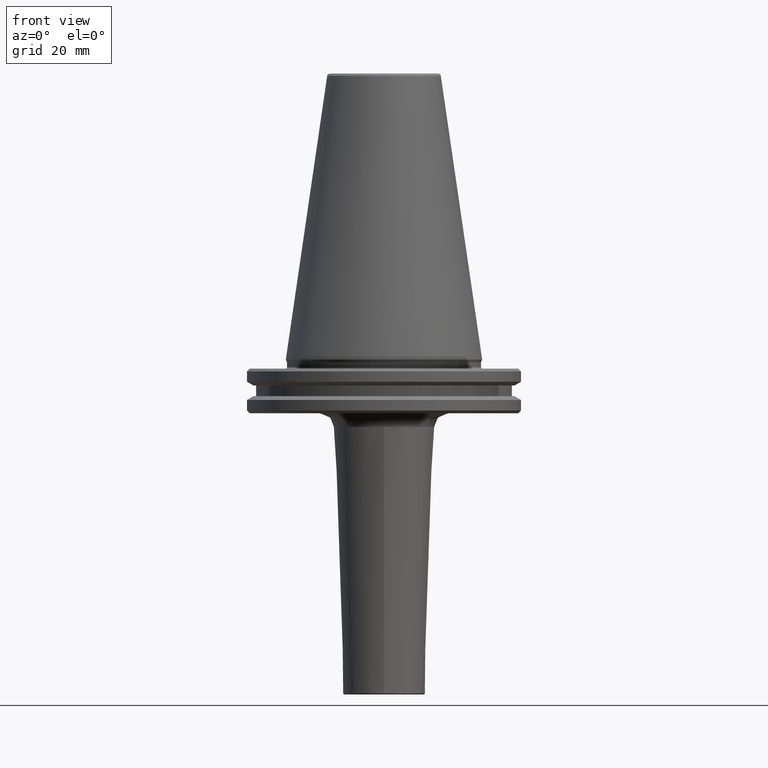
[diagram: clean part render]
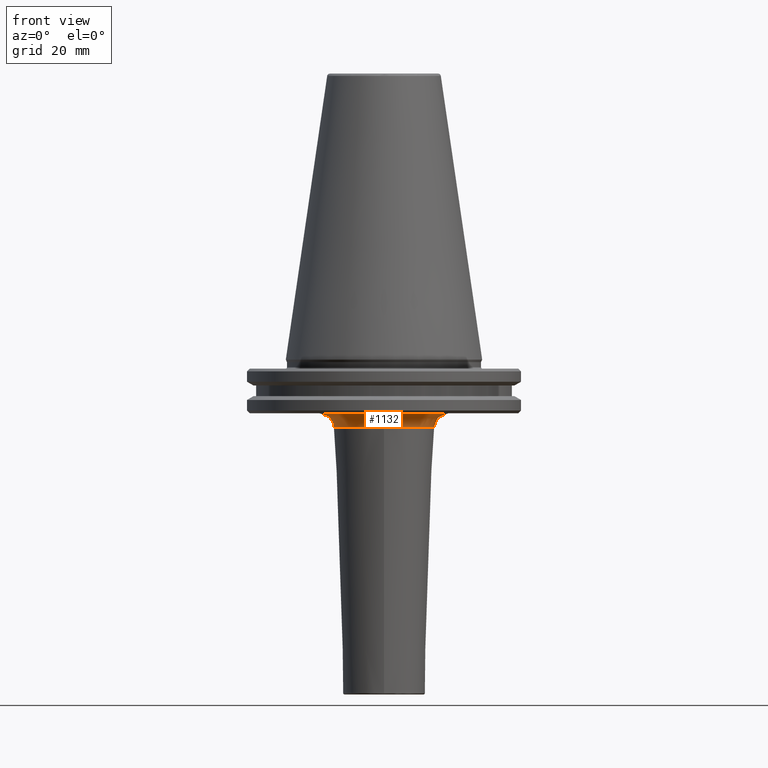
[diagram: same view with one face highlighted and labeled with its STEP entity id]
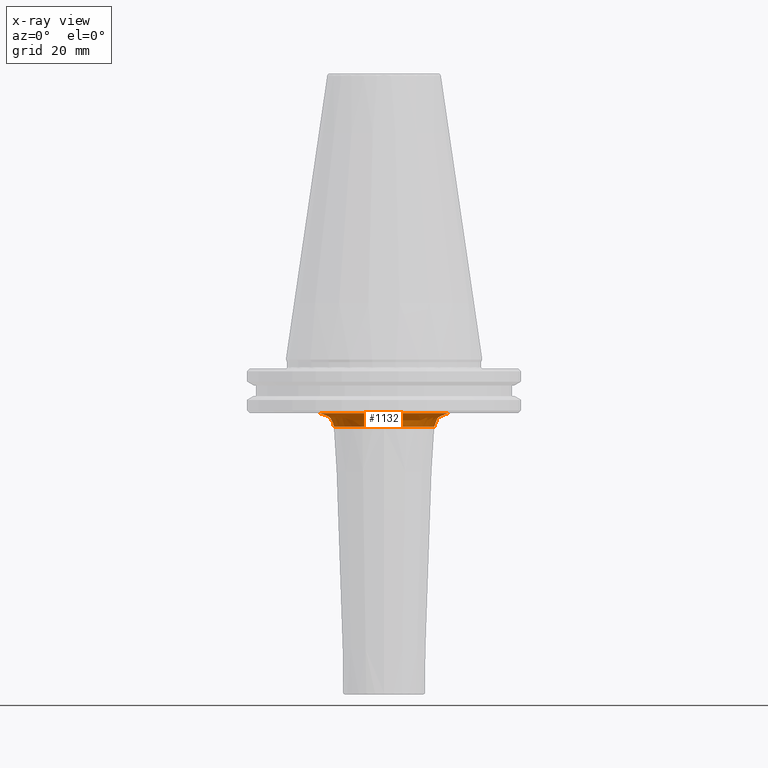
[diagram: x-ray of the same camera — body ghosted, the highlighted face saturated]
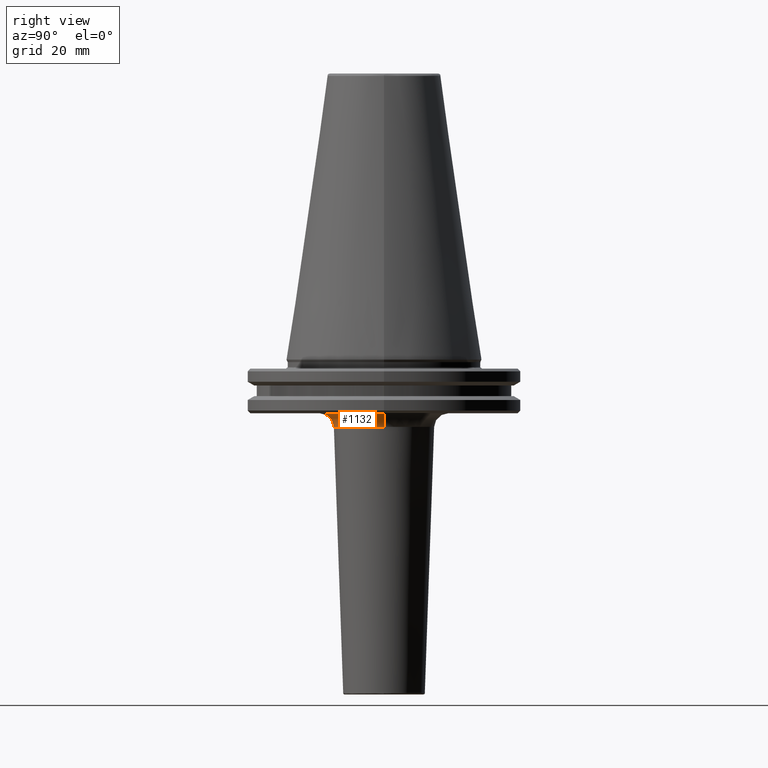
[diagram: same view with one face highlighted and labeled with its STEP entity id]
A machine part, front view. The second image highlights one B-rep face of the part: STEP entity #1132.
The next image is the same camera in x-ray: the body ghosted, the highlighted face saturated — about 0% of this face is hidden behind the body in this view.
A second angle (right view) of the same face is appended — the face is thin or edge-on in the first view.
In plain terms, the highlighted face is a freeform B-spline surface patch.
Its self-contained STEP definition (entity closure, byte-faithful):
#5 = CARTESIAN_POINT ( 'NONE',  ( 17.83112125188073400, 2.183682556632408800E-015, -23.92510708912191600 ) ) ;
#12 = EDGE_CURVE ( 'NONE', #134, #700, #1408, .T. ) ;
#15 = CARTESIAN_POINT ( 'NONE',  ( 22.82806156268340200, -45.65612312536678300, -19.10000000000000900 ) ) ;
#80 = CARTESIAN_POINT ( 'NONE',  ( 0.0000000000000000000, -17.83112125188073400, -23.92510708912191600 ) ) ;
#82 = CARTESIAN_POINT ( 'NONE',  ( 22.82806156268339100, 2.795631252347894400E-015, -19.10000000000000900 ) ) ;
#84 = CARTESIAN_POINT ( 'NONE',  ( 22.82806156268339100, 2.795631252347894000E-015, -19.10000000000000500 ) ) ;
#93 = CARTESIAN_POINT ( 'NONE',  ( 22.82806156268339500, -1.396454163596773500, -19.10000000000000100 ) ) ;
#102 = CARTESIAN_POINT ( 'NONE',  ( 22.70102620349914000, -2.781075417796220300, -19.10000000000000500 ) ) ;
#104 = CARTESIAN_POINT ( 'NONE',  ( 22.44298563015613000, -4.175313580485759100, -19.10000000000000900 ) ) ;
#108 = CARTESIAN_POINT ( 'NONE',  ( 22.43849916178885800, -4.199363345581996800, -19.10000000000000100 ) ) ;
#110 = CARTESIAN_POINT ( 'NONE',  ( 22.42994198119624700, -4.244833663054379300, -19.10000000000000100 ) ) ;
#113 = CARTESIAN_POINT ( 'NONE',  ( 22.41700535305649600, -4.313009873751574300, -19.10000000000000500 ) ) ;
#115 = AXIS2_PLACEMENT_3D ( 'NONE', #1286, #1374, #270 ) ;
#116 = EDGE_CURVE ( 'NONE', #1308, #838, #758, .T. ) ;
#117 = CARTESIAN_POINT ( 'NONE',  ( 22.38611388664119100, -4.471882840132003000, -19.10000000000000500 ) ) ;
#121 = CARTESIAN_POINT ( 'NONE',  ( 22.32150695078713600, -4.788809338574126600, -19.10000000000000500 ) ) ;
#133 = CARTESIAN_POINT ( 'NONE',  ( 22.18099706698523500, -5.419384598183378400, -19.10000000000000900 ) ) ;
#134 = VERTEX_POINT ( 'NONE', #80 ) ;
#139 = CARTESIAN_POINT ( 'NONE',  ( 21.85479325100612200, -6.667424168301998600, -19.10000000000000100 ) ) ;
#142 = CARTESIAN_POINT ( 'NONE',  ( 21.49773161152357300, -7.714696458518095500, -19.09999999999999800 ) ) ;
#145 = CARTESIAN_POINT ( 'NONE',  ( 21.20823538725298700, -8.445900705292645600, -19.10000000000000100 ) ) ;
#149 = CARTESIAN_POINT ( 'NONE',  ( 21.18962481807872000, -8.492496306890615200, -19.10000000000000500 ) ) ;
#158 = CARTESIAN_POINT ( 'NONE',  ( 21.15358072283777000, -8.581893291728668800, -19.10000000000000500 ) ) ;
#162 = CARTESIAN_POINT ( 'NONE',  ( 21.09911024357263200, -8.715778137709683900, -19.10000000000000500 ) ) ;
#167 = CARTESIAN_POINT ( 'NONE',  ( -22.82806156268339100, 0.0000000000000000000, -19.10000000000000500 ) ) ;
#170 = CARTESIAN_POINT ( 'NONE',  ( 20.96918210379468700, -9.026701692732897800, -19.10000000000000900 ) ) ;
#173 = CARTESIAN_POINT ( 'NONE',  ( 20.69800440493491000, -9.642651127049378000, -19.10000000000000900 ) ) ;
#178 = EDGE_CURVE ( 'NONE', #1308, #700, #1200, .T. ) ;
#181 = CARTESIAN_POINT ( 'NONE',  ( 20.11036332999988100, -10.85095929276262300, -19.10000000000000500 ) ) ;
#189 = CARTESIAN_POINT ( 'NONE',  ( 19.52903839054331700, -11.84621080122587400, -19.10000000000000900 ) ) ;
#192 = CARTESIAN_POINT ( 'NONE',  ( 19.05422839119474800, -12.57242883007069700, -19.10000000000000100 ) ) ;
#194 = CARTESIAN_POINT ( 'NONE',  ( -22.82806156268339100, 0.0000000000000000000, -24.10000000000000900 ) ) ;
#198 = CARTESIAN_POINT ( 'NONE',  ( 18.99866868114749300, -12.65625465060945100, -19.10000000000000900 ) ) ;
#209 = CARTESIAN_POINT ( 'NONE',  ( 18.88887845415888100, -12.81956869425480700, -19.10000000000000500 ) ) ;
#214 = CARTESIAN_POINT ( 'NONE',  ( 18.72271926332887700, -13.06333709073557400, -19.10000000000000100 ) ) ;
#220 = CARTESIAN_POINT ( 'NONE',  ( 18.32469753229601000, -13.62371133294649500, -19.10000000000000500 ) ) ;
#221 = CARTESIAN_POINT ( 'NONE',  ( 17.48738626051219200, -14.71078508572482400, -19.10000000000000500 ) ) ;
#222 = CARTESIAN_POINT ( 'NONE',  ( 17.83112125188073800, -35.66224250376146200, -23.92510708912191600 ) ) ;
#225 = CARTESIAN_POINT ( 'NONE',  ( 16.69894606803787300, -15.58483447671741100, -19.10000000000000500 ) ) ;
#229 = CARTESIAN_POINT ( 'NONE',  ( 17.93075148474044800, -35.86150296948088100, -21.07852900741595500 ) ) ;
#233 = CARTESIAN_POINT ( 'NONE',  ( 15.02773926087644100, -17.25596244351742200, -19.10000000000000500 ) ) ;
#244 = CARTESIAN_POINT ( 'NONE',  ( 13.81052122464795000, -18.24483669963387600, -19.10000000000000500 ) ) ;
#245 = CARTESIAN_POINT ( 'NONE',  ( 12.40931398255988100, -19.16086933017373200, -19.10000000000000100 ) ) ;
#246 = CARTESIAN_POINT ( 'NONE',  ( 12.32999966421798100, -19.21199831384471700, -19.10000000000000500 ) ) ;
#248 = CARTESIAN_POINT ( 'NONE',  ( 19.97974048553136600, -39.95948097106272500, -19.10000000000000900 ) ) ;
#249 = CARTESIAN_POINT ( 'NONE',  ( 12.16742618611643700, -19.31539044640761900, -19.10000000000000500 ) ) ;
#253 = CARTESIAN_POINT ( 'NONE',  ( 11.92273076462143200, -19.46885752175919400, -19.10000000000000500 ) ) ;
#255 = CARTESIAN_POINT ( 'NONE',  ( 11.34592835073423300, -19.81559949979672600, -19.10000000000000500 ) ) ;
#258 = CARTESIAN_POINT ( 'NONE',  ( 10.16893780136440700, -20.46369199807397600, -19.10000000000000500 ) ) ;
#260 = CARTESIAN_POINT ( 'NONE',  ( 9.119998950598146700, -20.94138592608674500, -19.10000000000001200 ) ) ;
#264 = EDGE_LOOP ( 'NONE', ( #1085, #840, #578, #782, #639 ) ) ;
#268 = CARTESIAN_POINT ( 'NONE',  ( 8.358069299537639600, -21.24300699259279300, -19.10000000000000500 ) ) ;
#270 = DIRECTION ( 'NONE',  ( -1.000000000000000000, 0.0000000000000000000, 0.0000000000000000000 ) ) ;
#274 = CARTESIAN_POINT ( 'NONE',  ( 8.316784260471870000, -21.25920043003061700, -19.10000000000000100 ) ) ;
#288 = CARTESIAN_POINT ( 'NONE',  ( 8.230564738626020100, -21.29273228508843000, -19.10000000000000100 ) ) ;
#293 = CARTESIAN_POINT ( 'NONE',  ( 8.101120364316019000, -21.34262606961830500, -19.10000000000000100 ) ) ;
#296 = CARTESIAN_POINT ( 'NONE',  ( 7.798277850137431200, -21.45621691379019700, -19.10000000000000500 ) ) ;
#307 = CARTESIAN_POINT ( 'NONE',  ( 7.189370258625911200, -21.67208665654265000, -19.10000000000000900 ) ) ;
#314 = CARTESIAN_POINT ( 'NONE',  ( 5.958664822985504400, -22.05857835968216600, -19.10000000000000500 ) ) ;
#316 = CARTESIAN_POINT ( 'NONE',  ( 4.881676873663934700, -22.31228933546113400, -19.10000000000000500 ) ) ;
#322 = DIRECTION ( 'NONE',  ( -1.000000000000000000, 0.0000000000000000000, 0.0000000000000000000 ) ) ;
#323 = EDGE_CURVE ( 'NONE', #838, #777, #632, .T. ) ;
#327 = CARTESIAN_POINT ( 'NONE',  ( 4.131119602877420000, -22.45116380230781400, -19.10000000000000900 ) ) ;
#330 = CARTESIAN_POINT ( 'NONE',  ( 22.82806156268339100, 2.795631252347894400E-015, -24.10000000000000900 ) ) ;
#337 = CARTESIAN_POINT ( 'NONE',  ( 4.110944779735608500, -22.45486518609846300, -19.10000000000000500 ) ) ;
#343 = CARTESIAN_POINT ( 'NONE',  ( 4.068017518967534900, -22.46268181983809600, -19.10000000000000500 ) ) ;
#344 = CARTESIAN_POINT ( 'NONE',  ( 4.003618349909968900, -22.47431370321936200, -19.10000000000000900 ) ) ;
#347 = CARTESIAN_POINT ( 'NONE',  ( 3.853295676770752900, -22.50080329384500600, -19.10000000000000500 ) ) ;
#348 = CIRCLE ( 'NONE', #115, 17.83112125188073400 ) ;
#350 = CARTESIAN_POINT ( 'NONE',  ( -17.83112125188073400, 0.0000000000000000000, -23.92510708912191600 ) ) ;
#355 = CARTESIAN_POINT ( 'NONE',  ( 3.552418549139466600, -22.55117659270698700, -19.10000000000000500 ) ) ;
#358 = CARTESIAN_POINT ( 'NONE',  ( 2.949737168465425400, -22.64149966087384800, -19.10000000000000500 ) ) ;
#359 = CARTESIAN_POINT ( 'NONE',  ( 1.740665905471500400, -22.78045167897905900, -19.10000000000001200 ) ) ;
#363 = CARTESIAN_POINT ( 'NONE',  ( 0.6979616772267052100, -22.82807777753468400, -19.10000000000000500 ) ) ;
#364 = CARTESIAN_POINT ( 'NONE',  ( -1.395923354453416400, -22.82802913298080900, -19.10000000000000500 ) ) ;
#367 = CARTESIAN_POINT ( 'NONE',  ( -2.781250729790679000, -22.70099375739214400, -19.10000000000000900 ) ) ;
#370 = CARTESIAN_POINT ( 'NONE',  ( -4.175310841235845100, -22.44298613712655000, -19.10000000000000500 ) ) ;
#378 = CARTESIAN_POINT ( 'NONE',  ( -4.199363345583506700, -22.43849916178841400, -19.10000000000000100 ) ) ;
#379 = CARTESIAN_POINT ( 'NONE',  ( -4.244833663057371500, -22.42994198119537300, -19.10000000000000500 ) ) ;
#381 = CARTESIAN_POINT ( 'NONE',  ( -4.313009873756742600, -22.41700535305497200, -19.10000000000000500 ) ) ;
#384 = CARTESIAN_POINT ( 'NONE',  ( -4.471882840142008300, -22.38611388663825600, -19.10000000000000500 ) ) ;
#385 = CARTESIAN_POINT ( 'NONE',  ( -19.97974048553135200, -39.95948097106273200, -19.10000000000000900 ) ) ;
#386 = CARTESIAN_POINT ( 'NONE',  ( -4.788809338592795200, -22.32150695078165000, -19.10000000000000500 ) ) ;
#389 = CARTESIAN_POINT ( 'NONE',  ( -5.419384598215393600, -22.18099706697582400, -19.10000000000000900 ) ) ;
#394 = CARTESIAN_POINT ( 'NONE',  ( -6.667424168344671100, -21.85479325099358800, -19.10000000000000500 ) ) ;
#398 = CARTESIAN_POINT ( 'NONE',  ( -7.714696458542475100, -21.49773161151641800, -19.10000000000000100 ) ) ;
#402 = CARTESIAN_POINT ( 'NONE',  ( -8.445900705291125000, -21.20823538725344200, -19.10000000000000500 ) ) ;
#404 = CARTESIAN_POINT ( 'NONE',  ( -8.492496306893579900, -21.18962481807723100, -19.10000000000000100 ) ) ;
#418 = CARTESIAN_POINT ( 'NONE',  ( -8.581893291734463200, -21.15358072283486700, -19.10000000000000900 ) ) ;
#421 = CARTESIAN_POINT ( 'NONE',  ( -8.715778137719571100, -21.09911024356766500, -19.10000000000000500 ) ) ;
#425 = CARTESIAN_POINT ( 'NONE',  ( -9.026701692751343500, -20.96918210378540000, -19.10000000000000500 ) ) ;
#427 = CARTESIAN_POINT ( 'NONE',  ( -9.642651127081007800, -20.69800440491899400, -19.10000000000000500 ) ) ;
#434 = CARTESIAN_POINT ( 'NONE',  ( -10.85095929280480900, -20.11036332997865700, -19.10000000000000900 ) ) ;
#441 = CARTESIAN_POINT ( 'NONE',  ( -11.84621080124998500, -19.52903839053117700, -19.10000000000000500 ) ) ;
#443 = CARTESIAN_POINT ( 'NONE',  ( -12.57242883006769000, -19.05422839119626500, -19.10000000000000500 ) ) ;
#448 = CARTESIAN_POINT ( 'NONE',  ( -12.65625465061204500, -18.99866868114489900, -19.10000000000000500 ) ) ;
#451 = CARTESIAN_POINT ( 'NONE',  ( -12.81956869425974200, -18.88887845415395400, -19.10000000000000500 ) ) ;
#463 = CARTESIAN_POINT ( 'NONE',  ( -13.06333709074376900, -18.72271926332069100, -19.10000000000000100 ) ) ;
#470 = CARTESIAN_POINT ( 'NONE',  ( -13.62371133296052900, -18.32469753228199100, -19.10000000000000100 ) ) ;
#480 = CARTESIAN_POINT ( 'NONE',  ( -14.71078508574354200, -17.48738626049348400, -19.10000000000000100 ) ) ;
#484 = CARTESIAN_POINT ( 'NONE',  ( -15.58483447672810000, -16.69894606802719000, -19.10000000000000100 ) ) ;
#489 = CARTESIAN_POINT ( 'NONE',  ( -17.25596244349603500, -15.02773926089783700, -19.10000000000000100 ) ) ;
#492 = CARTESIAN_POINT ( 'NONE',  ( -18.24483669967177600, -13.81052122461004700, -19.10000000000000500 ) ) ;
#495 = CARTESIAN_POINT ( 'NONE',  ( -19.16086933017136200, -12.40931398256226000, -19.10000000000000900 ) ) ;
#501 = CARTESIAN_POINT ( 'NONE',  ( -22.64147837888152600, -2.949852188553505600, -19.10000000000000500 ) ) ;
#503 = CARTESIAN_POINT ( 'NONE',  ( -21.24300699259267900, -8.358069299538435400, -19.10000000000000500 ) ) ;
#506 = CARTESIAN_POINT ( 'NONE',  ( -21.67208665654091600, -7.189370258640315600, -19.10000000000000500 ) ) ;
#511 = CARTESIAN_POINT ( 'NONE',  ( -17.83112125188073400, -4.367365113264817500E-015, -23.92510708912191600 ) ) ;
#514 = CARTESIAN_POINT ( 'NONE',  ( -19.31539044640846800, -12.16742618611061400, -19.10000000000000900 ) ) ;
#524 = CARTESIAN_POINT ( 'NONE',  ( -21.25920043003044700, -8.316784260473225400, -19.10000000000000900 ) ) ;
#530 = CARTESIAN_POINT ( 'NONE',  ( -21.29273228508811400, -8.230564738628661600, -19.10000000000000500 ) ) ;
#534 = CARTESIAN_POINT ( 'NONE',  ( -19.21199831384516400, -12.32999966421492200, -19.10000000000000900 ) ) ;
#539 = CARTESIAN_POINT ( 'NONE',  ( -22.45116380230785300, -4.131119602877078900, -19.10000000000001200 ) ) ;
#541 = CARTESIAN_POINT ( 'NONE',  ( -21.34262606961776100, -8.101120364320523800, -19.10000000000000500 ) ) ;
#551 = AXIS2_PLACEMENT_3D ( 'NONE', #1021, #1094, #883 ) ;
#553 = CARTESIAN_POINT ( 'NONE',  ( -19.97974048553136200, -4.893625046680153700E-015, -19.10000000000000900 ) ) ;
#578 = ORIENTED_EDGE ( 'NONE', *, *, #178, .T. ) ;
#602 = CARTESIAN_POINT ( 'NONE',  ( -22.82806156268339100, 0.0000000000000000000, -19.10000000000000500 ) ) ;
#606 = CARTESIAN_POINT ( 'NONE',  ( -22.55116417821145400, -3.552485644190843200, -19.10000000000000100 ) ) ;
#616 = CARTESIAN_POINT ( 'NONE',  ( -22.50079664322239400, -3.853331620548279700, -19.10000000000000900 ) ) ;
#626 = CARTESIAN_POINT ( 'NONE',  ( -22.82806156268339100, -5.591262504695788800E-015, -19.10000000000000900 ) ) ;
#632 = CIRCLE ( 'NONE', #1192, 5.000000000000000900 ) ;
#636 = DIRECTION ( 'NONE',  ( 0.0000000000000000000, 1.000000000000000000, 0.0000000000000000000 ) ) ;
#638 = CARTESIAN_POINT ( 'NONE',  ( -22.82806156268338800, -0.6980493115795235500, -19.10000000000000100 ) ) ;
#639 = ORIENTED_EDGE ( 'NONE', *, *, #1539, .F. ) ;
#663 = DIRECTION ( 'NONE',  ( 1.000000000000000000, 1.224646799147352700E-016, 0.0000000000000000000 ) ) ;
#666 = CARTESIAN_POINT ( 'NONE',  ( 17.93075148474044400, 2.195883741209404000E-015, -21.07852900741595200 ) ) ;
#677 = CARTESIAN_POINT ( 'NONE',  ( -22.46267983256872500, -4.068028259310581900, -19.10000000000000100 ) ) ;
#679 = CARTESIAN_POINT ( 'NONE',  ( 19.97974048553136200, 2.446812523340076900E-015, -19.10000000000000900 ) ) ;
#680 = CARTESIAN_POINT ( 'NONE',  ( -22.47431026706435000, -4.003636920861689300, -19.10000000000000500 ) ) ;
#700 = VERTEX_POINT ( 'NONE', #350 ) ;
#758 = B_SPLINE_CURVE_WITH_KNOTS ( 'NONE', 3,
 ( #602, #638, #976, #501, #606, #616, #680, #677, #880, #539, #1177, #1070, #506, #1090, #541, #530, #524, #503, #1237, #1014, #906, #922, #514, #534, #495, #492, #489, #484, #480, #470, #463, #451, #448, #443, #441, #434, #427, #425, #421, #418, #404, #402, #398, #394, #389, #386, #384, #381, #379, #378, #370, #367, #364, #363, #359, #358, #355, #347, #344, #343, #337, #327, #316, #314, #307, #296, #293, #288, #274, #268, #260, #258, #255, #253, #249, #246, #245, #244, #233, #225, #221, #220, #214, #209, #198, #192, #189, #181, #173, #170, #162, #158, #149, #145, #142, #139, #133, #121, #117, #113, #110, #108, #104, #102, #93, #84 ),
 .UNSPECIFIED., .F., .F.,
 ( 4, 1, 1, 1, 1, 1, 2, 2, 1, 1, 1, 1, 2, 2, 1, 1, 1, 2, 2, 2, 1, 1, 1, 2, 2, 1, 1, 1, 1, 2, 2, 1, 1, 1, 1, 1, 2, 2, 2, 1, 1, 1, 1, 1, 2, 2, 1, 1, 1, 1, 2, 2, 1, 1, 1, 2, 2, 2, 1, 1, 1, 2, 2, 1, 1, 1, 1, 2, 2, 1, 1, 1, 1, 1, 2, 2, 4 ),
 ( 0.0000000000000000000, 0.03125000000000097800, 0.04687500000000145000, 0.05468750000000169300, 0.05859375000000179000, 0.06054687500000182500, 0.06152343750000186000, 0.06250000000000188700, 0.09375000000000215100, 0.1093750000000023300, 0.1171875000000023900, 0.1210937500000023500, 0.1230468750000023000, 0.1250000000000022500, 0.1562500000000014400, 0.1718750000000010500, 0.1796875000000008300, 0.1835937500000006900, 0.1875000000000005600, 0.2499999999999993300, 0.2812499999999987200, 0.2968749999999983900, 0.3046874999999982800, 0.3085937499999981100, 0.3124999999999979500, 0.3437499999999970600, 0.3593749999999966100, 0.3671874999999963900, 0.3710937499999962800, 0.3730468749999962300, 0.3749999999999961700, 0.4062499999999964500, 0.4218749999999966100, 0.4296874999999966700, 0.4335937499999967800, 0.4355468749999967800, 0.4365234374999967200, 0.4374999999999967200, 0.4999999999999951700, 0.5312499999999944500, 0.5468749999999940000, 0.5546874999999937800, 0.5585937499999937800, 0.5605468749999936700, 0.5615234374999936700, 0.5624999999999937800, 0.5937499999999935600, 0.6093749999999935600, 0.6171874999999935600, 0.6210937499999935600, 0.6230468749999936700, 0.6249999999999936700, 0.6562499999999935600, 0.6718749999999934500, 0.6796874999999935600, 0.6835937499999935600, 0.6874999999999935600, 0.7499999999999936700, 0.7812499999999936700, 0.7968749999999937800, 0.8046874999999937800, 0.8085937499999937800, 0.8124999999999937800, 0.8437499999999940000, 0.8593749999999941200, 0.8671874999999943400, 0.8710937499999943400, 0.8730468749999943400, 0.8749999999999944500, 0.9062499999999945600, 0.9218749999999945600, 0.9296874999999945600, 0.9335937499999945600, 0.9355468749999946700, 0.9365234374999946700, 0.9374999999999946700, 1.000000000000000000 ),
 .UNSPECIFIED. ) ;
#777 = VERTEX_POINT ( 'NONE', #1006 ) ;
#782 = ORIENTED_EDGE ( 'NONE', *, *, #12, .F. ) ;
#802 = CARTESIAN_POINT ( 'NONE',  ( -17.83112125188072400, -35.66224250376146900, -23.92510708912191600 ) ) ;
#819 =( BOUNDED_SURFACE ( )  B_SPLINE_SURFACE ( 3, 3, ( 
 ( #82, #15, #1503, #626 ),
 ( #679, #248, #385, #553 ),
 ( #666, #229, #1051, #1316 ),
 ( #5, #222, #802, #511 ) ),
 .UNSPECIFIED., .F., .F., .T. ) 
 B_SPLINE_SURFACE_WITH_KNOTS ( ( 4, 4 ),
 ( 4, 4 ),
 ( 0.0000000000000000000, 1.000000000000000000 ),
 ( 0.0000000000000000000, 1.000000000000000000 ),
 .UNSPECIFIED. ) 
 GEOMETRIC_REPRESENTATION_ITEM ( )  RATIONAL_B_SPLINE_SURFACE ( (
 ( 1.000000000000000000, 0.3333333333333334300, 0.3333333333333334300, 1.000000000000000000),
 ( 0.8129115234999325600, 0.2709705078333109500, 0.2709705078333109500, 0.8129115234999325600),
 ( 0.8129115234999325600, 0.2709705078333109500, 0.2709705078333109500, 0.8129115234999325600),
 ( 1.000000000000000000, 0.3333333333333334300, 0.3333333333333334300, 1.000000000000000000) ) ) 
 REPRESENTATION_ITEM ( '' )  SURFACE ( )  );
#838 = VERTEX_POINT ( 'NONE', #1529 ) ;
#840 = ORIENTED_EDGE ( 'NONE', *, *, #116, .F. ) ;
#880 = CARTESIAN_POINT ( 'NONE',  ( -22.45486418058767000, -4.110950214092449400, -19.10000000000000900 ) ) ;
#883 = DIRECTION ( 'NONE',  ( -1.000000000000000000, 0.0000000000000000000, 0.0000000000000000000 ) ) ;
#906 = CARTESIAN_POINT ( 'NONE',  ( -19.81559949979915600, -11.34592835071762300, -19.10000000000000500 ) ) ;
#922 = CARTESIAN_POINT ( 'NONE',  ( -19.46885752176060100, -11.92273076461174800, -19.10000000000000900 ) ) ;
#976 = CARTESIAN_POINT ( 'NONE',  ( -22.78042330298928800, -1.740819265588943000, -19.10000000000000100 ) ) ;
#1006 = CARTESIAN_POINT ( 'NONE',  ( 17.83112125188073400, 2.489656904490151400E-015, -23.92510708912191600 ) ) ;
#1014 = CARTESIAN_POINT ( 'NONE',  ( -20.46369199807720200, -10.16893780134226900, -19.10000000000000500 ) ) ;
#1021 = CARTESIAN_POINT ( 'NONE',  ( 0.0000000000000000000, 0.0000000000000000000, -23.92510708912191600 ) ) ;
#1051 = CARTESIAN_POINT ( 'NONE',  ( -17.93075148474043300, -35.86150296948088800, -21.07852900741595500 ) ) ;
#1070 = CARTESIAN_POINT ( 'NONE',  ( -22.05857835967985600, -5.958664823004709500, -19.10000000000000100 ) ) ;
#1085 = ORIENTED_EDGE ( 'NONE', *, *, #323, .F. ) ;
#1090 = CARTESIAN_POINT ( 'NONE',  ( -21.45621691378919800, -7.798277850145837000, -19.10000000000000500 ) ) ;
#1094 = DIRECTION ( 'NONE',  ( 0.0000000000000000000, 0.0000000000000000000, -1.000000000000000000 ) ) ;
#1132 = ADVANCED_FACE ( 'NONE', ( #1385 ), #819, .F. ) ;
#1177 = CARTESIAN_POINT ( 'NONE',  ( -22.31228933545982000, -4.881676873674910800, -19.10000000000000900 ) ) ;
#1192 = AXIS2_PLACEMENT_3D ( 'NONE', #330, #1400, #663 ) ;
#1200 = CIRCLE ( 'NONE', #1406, 5.000000000000000900 ) ;
#1237 = CARTESIAN_POINT ( 'NONE',  ( -20.94138592608859300, -9.119998950585481300, -19.10000000000000100 ) ) ;
#1286 = CARTESIAN_POINT ( 'NONE',  ( 0.0000000000000000000, 0.0000000000000000000, -23.92510708912191600 ) ) ;
#1308 = VERTEX_POINT ( 'NONE', #167 ) ;
#1316 = CARTESIAN_POINT ( 'NONE',  ( -17.93075148474044400, -4.391767482418808100E-015, -21.07852900741595200 ) ) ;
#1374 = DIRECTION ( 'NONE',  ( 0.0000000000000000000, 0.0000000000000000000, -1.000000000000000000 ) ) ;
#1385 = FACE_OUTER_BOUND ( 'NONE', #264, .T. ) ;
#1400 = DIRECTION ( 'NONE',  ( 1.224646799147353200E-016, -1.000000000000000000, 0.0000000000000000000 ) ) ;
#1406 = AXIS2_PLACEMENT_3D ( 'NONE', #194, #636, #322 ) ;
#1408 = CIRCLE ( 'NONE', #551, 17.83112125188073400 ) ;
#1503 = CARTESIAN_POINT ( 'NONE',  ( -22.82806156268338400, -45.65612312536679000, -19.10000000000000900 ) ) ;
#1529 = CARTESIAN_POINT ( 'NONE',  ( 22.82806156268339100, 2.795631252347894000E-015, -19.10000000000000500 ) ) ;
#1539 = EDGE_CURVE ( 'NONE', #777, #134, #348, .T. ) ;